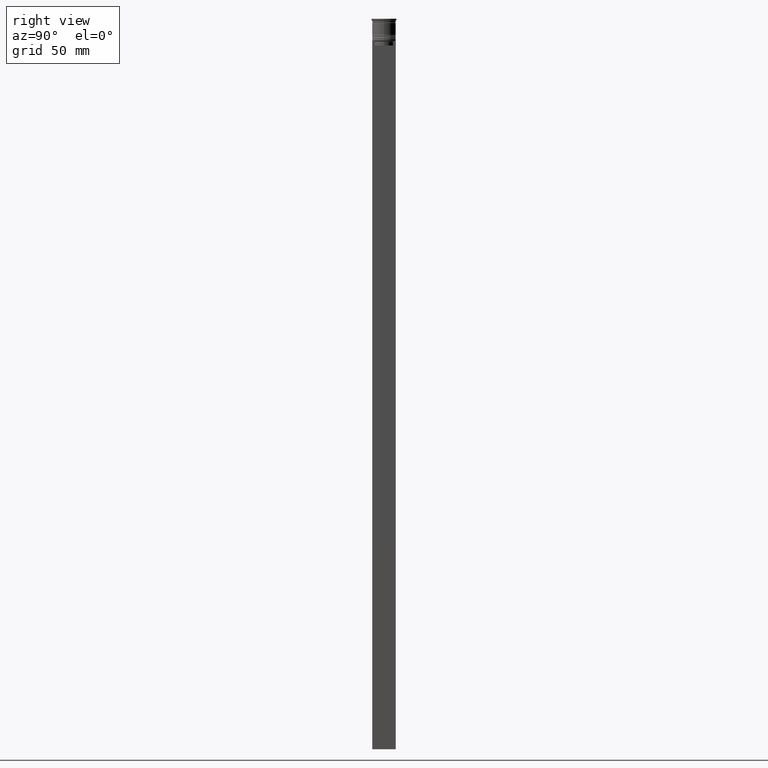
[diagram: clean part render]
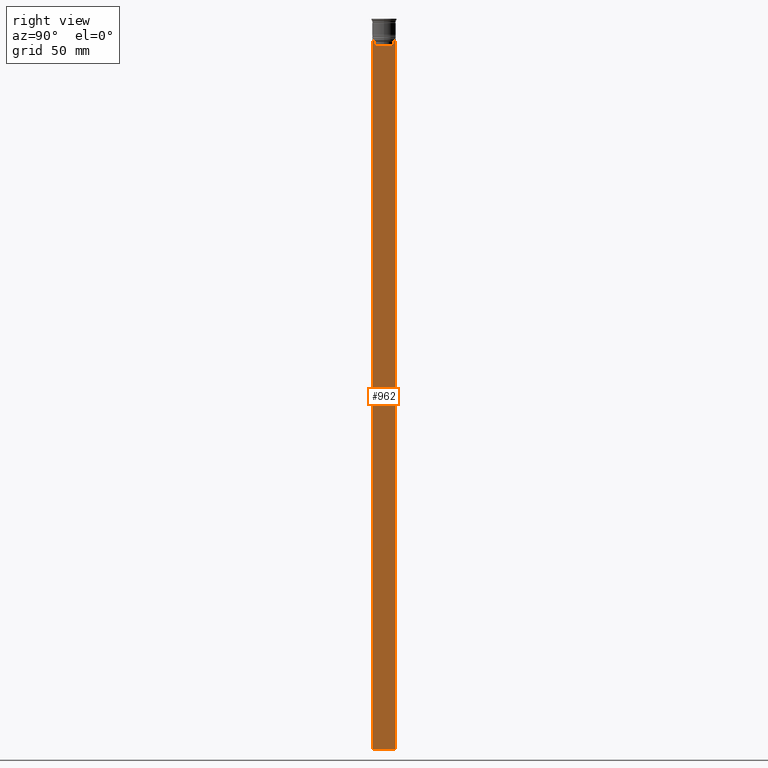
[diagram: same view with one face highlighted and labeled with its STEP entity id]
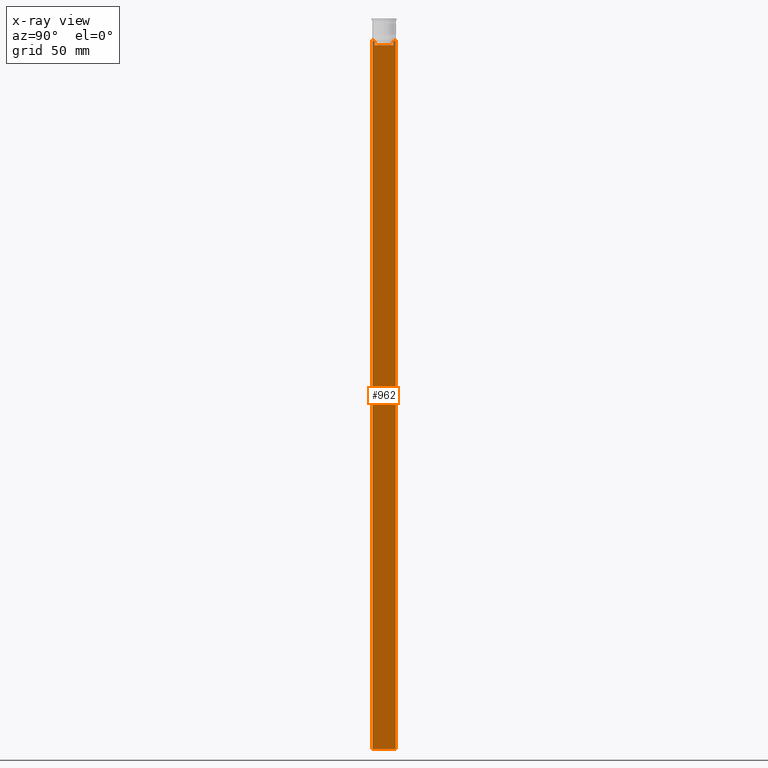
[diagram: x-ray of the same camera — body ghosted, the highlighted face saturated]
A machine part, right view. The second image highlights one B-rep face of the part: STEP entity #962.
The next image is the same camera in x-ray: the body ghosted, the highlighted face saturated — about 0% of this face is hidden behind the body in this view.
In plain terms, the highlighted planar face has unit normal (-1, 0, 0).
Its self-contained STEP definition (entity closure, byte-faithful):
#49 = LINE ( 'NONE', #439, #618 ) ;
#68 = ORIENTED_EDGE ( 'NONE', *, *, #1891, .T. ) ;
#71 = EDGE_CURVE ( 'NONE', #2425, #1283, #316, .T. ) ;
#75 = CARTESIAN_POINT ( 'NONE',  ( 0.5000000000000000000, 5.878775382679625849, -14.50000000000000000 ) ) ;
#76 = ORIENTED_EDGE ( 'NONE', *, *, #71, .T. ) ;
#108 = CARTESIAN_POINT ( 'NONE',  ( 0.5000000000000000000, -5.878775382679625849, -17.00000000000000000 ) ) ;
#120 = CARTESIAN_POINT ( 'NONE',  ( 0.5000000000000000000, 5.878775382679625849, -14.50000000000000000 ) ) ;
#145 = ORIENTED_EDGE ( 'NONE', *, *, #668, .T. ) ;
#158 = B_SPLINE_CURVE_WITH_KNOTS ( 'NONE', 3,
 ( #906, #2095, #1117, #885 ),
 .UNSPECIFIED., .F., .F.,
 ( 4, 4 ),
 ( 0.02765270321082434479, 0.02836198271238431559 ),
 .UNSPECIFIED. ) ;
#190 = VERTEX_POINT ( 'NONE', #108 ) ;
#252 = VERTEX_POINT ( 'NONE', #972 ) ;
#278 = ORIENTED_EDGE ( 'NONE', *, *, #1237, .T. ) ;
#299 = DIRECTION ( 'NONE',  ( 0.000000000000000000, 0.000000000000000000, -1.000000000000000000 ) ) ;
#305 = VECTOR ( 'NONE', #2484, 1000.000000000000000 ) ;
#307 = VERTEX_POINT ( 'NONE', #800 ) ;
#316 = LINE ( 'NONE', #2062, #611 ) ;
#346 = LINE ( 'NONE', #1138, #1839 ) ;
#374 = CARTESIAN_POINT ( 'NONE',  ( 0.5000000000000000000, -6.380438856379706536, -14.00000000000000178 ) ) ;
#390 = CARTESIAN_POINT ( 'NONE',  ( 0.5000000000000000000, -7.383088784512886527, -14.00000000000000178 ) ) ;
#410 = CARTESIAN_POINT ( 'NONE',  ( 0.5000000000000000000, -7.499999999999999112, 1.033296378372908997 ) ) ;
#422 = DIRECTION ( 'NONE',  ( 0.000000000000000000, -1.000000000000000000, 0.000000000000000000 ) ) ;
#423 = VECTOR ( 'NONE', #2077, 1000.000000000000000 ) ;
#439 = CARTESIAN_POINT ( 'NONE',  ( 0.5000000000000000000, 5.878775382679625849, 0.000000000000000000 ) ) ;
#443 = ORIENTED_EDGE ( 'NONE', *, *, #682, .T. ) ;
#519 = EDGE_CURVE ( 'NONE', #1147, #1722, #1701, .T. ) ;
#520 = CARTESIAN_POINT ( 'NONE',  ( 0.5000000000000000000, -7.499999999999999112, -14.00000000000000178 ) ) ;
#528 = ORIENTED_EDGE ( 'NONE', *, *, #2205, .F. ) ;
#611 = VECTOR ( 'NONE', #2208, 1000.000000000000000 ) ;
#614 = ORIENTED_EDGE ( 'NONE', *, *, #756, .T. ) ;
#618 = VECTOR ( 'NONE', #299, 1000.000000000000000 ) ;
#668 = EDGE_CURVE ( 'NONE', #307, #2425, #2414, .T. ) ;
#682 = EDGE_CURVE ( 'NONE', #2090, #959, #49, .T. ) ;
#708 = EDGE_CURVE ( 'NONE', #1626, #1147, #1448, .T. ) ;
#756 = EDGE_CURVE ( 'NONE', #812, #2255, #1289, .T. ) ;
#792 = DIRECTION ( 'NONE',  ( -1.000000000000000000, 0.000000000000000000, 0.000000000000000000 ) ) ;
#800 = CARTESIAN_POINT ( 'NONE',  ( 0.5000000000000000000, 7.500000000000002665, -14.00000000000000178 ) ) ;
#812 = VERTEX_POINT ( 'NONE', #374 ) ;
#818 = B_SPLINE_CURVE_WITH_KNOTS ( 'NONE', 3,
 ( #2373, #1026, #2177, #75 ),
 .UNSPECIFIED., .F., .F.,
 ( 4, 4 ),
 ( 0.01087727669788152163, 0.01158556069794289788 ),
 .UNSPECIFIED. ) ;
#841 = ORIENTED_EDGE ( 'NONE', *, *, #1679, .T. ) ;
#866 = VECTOR ( 'NONE', #422, 1000.000000000000000 ) ;
#885 = CARTESIAN_POINT ( 'NONE',  ( 0.5000000000000000000, -6.380438856379706536, -14.00000000000000178 ) ) ;
#906 = CARTESIAN_POINT ( 'NONE',  ( 0.5000000000000000000, -5.878775382679625849, -14.50000000000000000 ) ) ;
#925 = VECTOR ( 'NONE', #1245, 1000.000000000000000 ) ;
#957 = LINE ( 'NONE', #1970, #2274 ) ;
#959 = VERTEX_POINT ( 'NONE', #1170 ) ;
#962 = ADVANCED_FACE ( 'NONE', ( #1563 ), #1359, .F. ) ;
#969 = EDGE_CURVE ( 'NONE', #959, #190, #1006, .T. ) ;
#972 = CARTESIAN_POINT ( 'NONE',  ( 0.5000000000000000000, -5.878775382679625849, -14.50000000000000000 ) ) ;
#1006 = LINE ( 'NONE', #2147, #866 ) ;
#1026 = CARTESIAN_POINT ( 'NONE',  ( 0.5000000000000000000, 6.213239387491007015, -14.16668843563492430 ) ) ;
#1065 = DIRECTION ( 'NONE',  ( 0.000000000000000000, 0.000000000000000000, -1.000000000000000000 ) ) ;
#1082 = CARTESIAN_POINT ( 'NONE',  ( 0.5000000000000000000, 6.380438856379706536, -14.00000000000000178 ) ) ;
#1117 = CARTESIAN_POINT ( 'NONE',  ( 0.5000000000000000000, -6.213239311785844876, -14.16668851110870087 ) ) ;
#1138 = CARTESIAN_POINT ( 'NONE',  ( 0.5000000000000000000, -7.499999999999999112, -14.00000000000000178 ) ) ;
#1147 = VERTEX_POINT ( 'NONE', #2287 ) ;
#1170 = CARTESIAN_POINT ( 'NONE',  ( 0.5000000000000000000, 5.878775382679625849, -17.00000000000000000 ) ) ;
#1208 = DIRECTION ( 'NONE',  ( 0.000000000000000000, 0.000000000000000000, 1.000000000000000000 ) ) ;
#1237 = EDGE_CURVE ( 'NONE', #2255, #1626, #346, .T. ) ;
#1245 = DIRECTION ( 'NONE',  ( 0.000000000000000000, -1.000000000000000000, 0.000000000000000000 ) ) ;
#1275 = ORIENTED_EDGE ( 'NONE', *, *, #519, .T. ) ;
#1283 = VERTEX_POINT ( 'NONE', #1082 ) ;
#1289 = LINE ( 'NONE', #1330, #423 ) ;
#1330 = CARTESIAN_POINT ( 'NONE',  ( 0.5000000000000000000, -7.499999999999999112, -14.00000000000000178 ) ) ;
#1359 = PLANE ( 'NONE',  #1794 ) ;
#1448 = LINE ( 'NONE', #2028, #2304 ) ;
#1513 = LINE ( 'NONE', #2262, #1708 ) ;
#1554 = DIRECTION ( 'NONE',  ( 0.000000000000000000, 0.000000000000000000, -1.000000000000000000 ) ) ;
#1563 = FACE_OUTER_BOUND ( 'NONE', #2026, .T. ) ;
#1626 = VERTEX_POINT ( 'NONE', #520 ) ;
#1627 = EDGE_CURVE ( 'NONE', #252, #812, #158, .T. ) ;
#1646 = CARTESIAN_POINT ( 'NONE',  ( 0.5000000000000000000, -7.499999999999999112, -14.00000000000000178 ) ) ;
#1679 = EDGE_CURVE ( 'NONE', #190, #252, #1513, .T. ) ;
#1701 = LINE ( 'NONE', #2283, #305 ) ;
#1708 = VECTOR ( 'NONE', #2422, 1000.000000000000000 ) ;
#1709 = DIRECTION ( 'NONE',  ( 0.000000000000000000, -1.000000000000000000, 0.000000000000000000 ) ) ;
#1722 = VERTEX_POINT ( 'NONE', #2284 ) ;
#1733 = ORIENTED_EDGE ( 'NONE', *, *, #1627, .T. ) ;
#1794 = AXIS2_PLACEMENT_3D ( 'NONE', #410, #792, #1208 ) ;
#1839 = VECTOR ( 'NONE', #1709, 1000.000000000000000 ) ;
#1891 = EDGE_CURVE ( 'NONE', #1283, #2090, #818, .T. ) ;
#1956 = ORIENTED_EDGE ( 'NONE', *, *, #969, .T. ) ;
#1970 = CARTESIAN_POINT ( 'NONE',  ( 0.5000000000000000000, 7.500000000000002665, 1.033296378372908997 ) ) ;
#2026 = EDGE_LOOP ( 'NONE', ( #76, #68, #443, #1956, #841, #1733, #614, #278, #2105, #1275, #528, #145 ) ) ;
#2028 = CARTESIAN_POINT ( 'NONE',  ( 0.5000000000000000000, -7.499999999999999112, 1.033296378372908997 ) ) ;
#2062 = CARTESIAN_POINT ( 'NONE',  ( 0.5000000000000000000, -7.499999999999999112, -14.00000000000000178 ) ) ;
#2077 = DIRECTION ( 'NONE',  ( 0.000000000000000000, -1.000000000000000000, 0.000000000000000000 ) ) ;
#2090 = VERTEX_POINT ( 'NONE', #120 ) ;
#2095 = CARTESIAN_POINT ( 'NONE',  ( 0.5000000000000000000, -6.046019991840948293, -14.33335703538585726 ) ) ;
#2105 = ORIENTED_EDGE ( 'NONE', *, *, #708, .T. ) ;
#2147 = CARTESIAN_POINT ( 'NONE',  ( 0.5000000000000000000, 5.899999999999998579, -17.00000000000000000 ) ) ;
#2177 = CARTESIAN_POINT ( 'NONE',  ( 0.5000000000000000000, 6.046020074006152711, -14.33335695351623151 ) ) ;
#2205 = EDGE_CURVE ( 'NONE', #307, #1722, #957, .T. ) ;
#2208 = DIRECTION ( 'NONE',  ( 0.000000000000000000, -1.000000000000000000, 0.000000000000000000 ) ) ;
#2255 = VERTEX_POINT ( 'NONE', #390 ) ;
#2262 = CARTESIAN_POINT ( 'NONE',  ( 0.5000000000000000000, -5.878775382679625849, 0.000000000000000000 ) ) ;
#2274 = VECTOR ( 'NONE', #1554, 1000.000000000000000 ) ;
#2283 = CARTESIAN_POINT ( 'NONE',  ( 0.5000000000000000000, -7.499999999999999112, -464.0000000000000000 ) ) ;
#2284 = CARTESIAN_POINT ( 'NONE',  ( 0.5000000000000000000, 7.500000000000002665, -464.0000000000000000 ) ) ;
#2287 = CARTESIAN_POINT ( 'NONE',  ( 0.5000000000000000000, -7.499999999999999112, -464.0000000000000000 ) ) ;
#2304 = VECTOR ( 'NONE', #1065, 1000.000000000000000 ) ;
#2373 = CARTESIAN_POINT ( 'NONE',  ( 0.5000000000000000000, 6.380438856379706536, -14.00000000000000178 ) ) ;
#2379 = CARTESIAN_POINT ( 'NONE',  ( 0.5000000000000000000, 7.383088784512886527, -14.00000000000000178 ) ) ;
#2414 = LINE ( 'NONE', #1646, #925 ) ;
#2422 = DIRECTION ( 'NONE',  ( -0.000000000000000000, -0.000000000000000000, 1.000000000000000000 ) ) ;
#2425 = VERTEX_POINT ( 'NONE', #2379 ) ;
#2484 = DIRECTION ( 'NONE',  ( 0.000000000000000000, 1.000000000000000000, 0.000000000000000000 ) ) ;